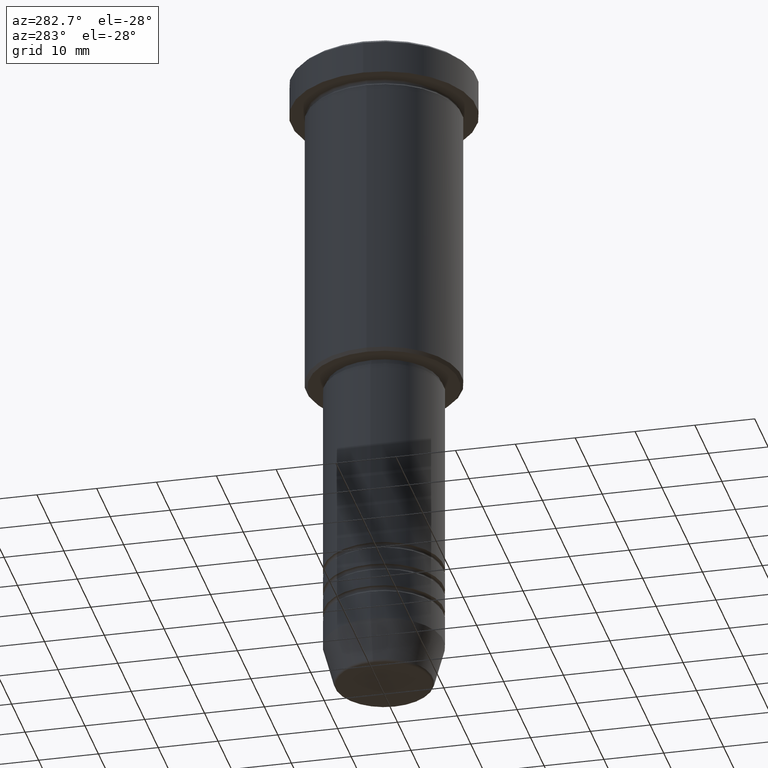
[diagram: clean part render]
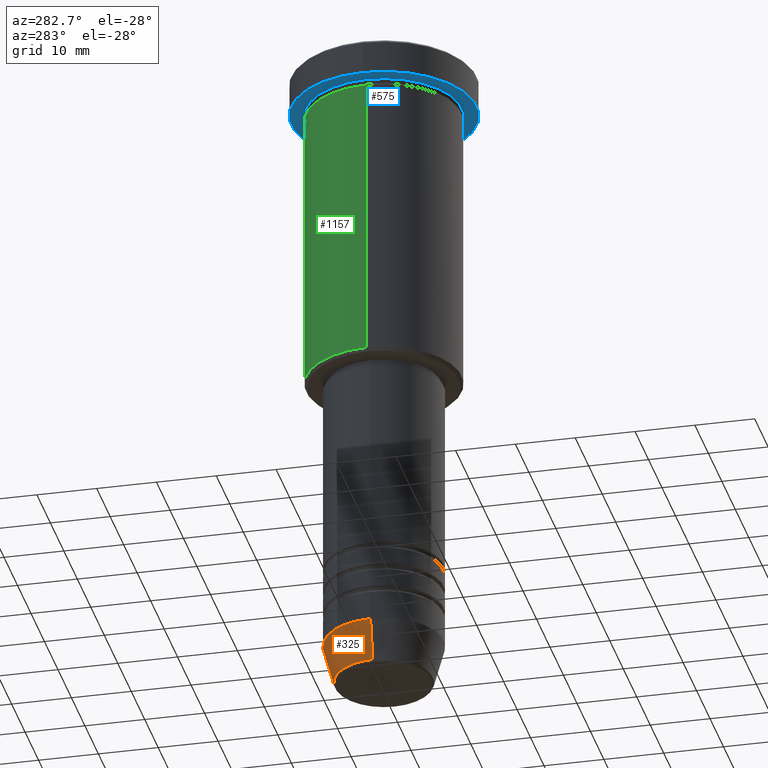
[diagram: same view with three faces highlighted in distinct colors, each labeled with its STEP entity id]
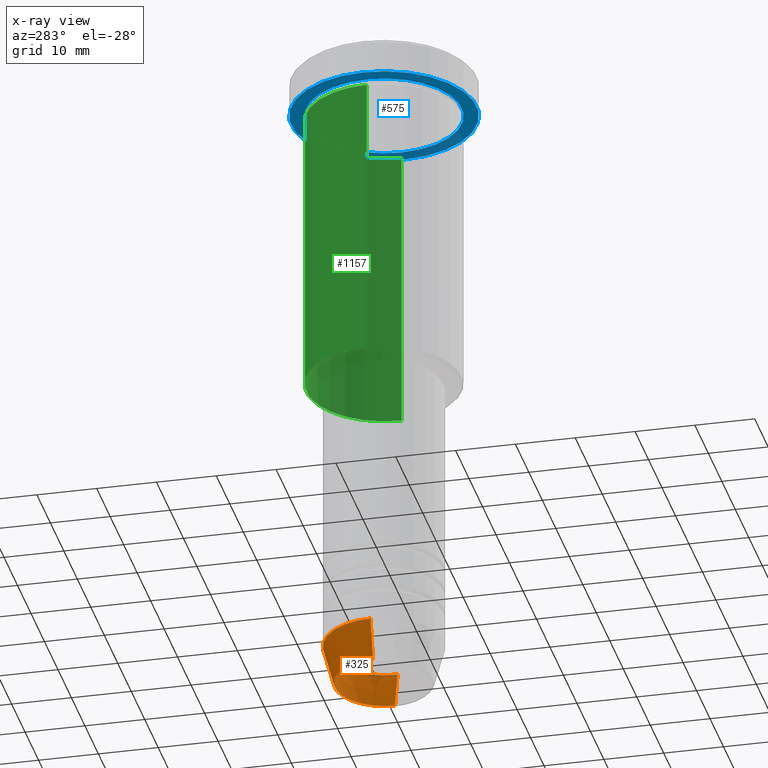
[diagram: x-ray of the same camera — body ghosted, the three highlighted faces saturated]
A machine part, auxiliary view with three faces highlighted in distinct colors.
The next image is the same camera in x-ray (body ghosted, the three faces saturated) — at least one of them is partly hidden behind the body in this view.
Their STEP definitions:

[orange] entity #325 — the highlighted conical surface has half-angle 15 deg.
#39 = DIRECTION ( 'NONE',  ( 1.000000000000000000, 0.000000000000000000, 0.000000000000000000 ) ) ;
#43 = DIRECTION ( 'NONE',  ( 0.2588190451025210725, 0.000000000000000000, 0.9659258262890680902 ) ) ;
#47 = CONICAL_SURFACE ( 'NONE', #1012, 10.00000000000000000, 0.2617993877991497964 ) ;
#49 = VERTEX_POINT ( 'NONE', #344 ) ;
#53 = CARTESIAN_POINT ( 'NONE',  ( -8.223655072137189492, 1.115877042642912054E-15, -110.6294095225512848 ) ) ;
#65 = ORIENTED_EDGE ( 'NONE', *, *, #370, .F. ) ;
#117 = DIRECTION ( 'NONE',  ( -0.000000000000000000, -0.000000000000000000, 1.000000000000000000 ) ) ;
#143 = CIRCLE ( 'NONE', #449, 8.223655072137189492 ) ;
#280 = EDGE_CURVE ( 'NONE', #589, #49, #505, .T. ) ;
#290 = VERTEX_POINT ( 'NONE', #53 ) ;
#305 = DIRECTION ( 'NONE',  ( -0.000000000000000000, -0.000000000000000000, 1.000000000000000000 ) ) ;
#308 = CARTESIAN_POINT ( 'NONE',  ( 10.00000000000000000, 0.000000000000000000, -104.0000000000000142 ) ) ;
#325 = ADVANCED_FACE ( 'NONE', ( #930 ), #47, .T. ) ;
#328 = DIRECTION ( 'NONE',  ( 1.000000000000000000, 0.000000000000000000, 0.000000000000000000 ) ) ;
#344 = CARTESIAN_POINT ( 'NONE',  ( -10.00000000000000000, 1.224646799147353256E-15, -104.0000000000000142 ) ) ;
#349 = EDGE_CURVE ( 'NONE', #290, #49, #392, .T. ) ;
#370 = EDGE_CURVE ( 'NONE', #965, #589, #1022, .T. ) ;
#392 = LINE ( 'NONE', #940, #744 ) ;
#397 = EDGE_CURVE ( 'NONE', #965, #290, #143, .T. ) ;
#409 = DIRECTION ( 'NONE',  ( 1.000000000000000000, 0.000000000000000000, 0.000000000000000000 ) ) ;
#449 = AXIS2_PLACEMENT_3D ( 'NONE', #486, #117, #409 ) ;
#486 = CARTESIAN_POINT ( 'NONE',  ( 0.000000000000000000, 0.000000000000000000, -110.6294095225512848 ) ) ;
#493 = CARTESIAN_POINT ( 'NONE',  ( 10.00000000000000000, 0.000000000000000000, -104.0000000000000142 ) ) ;
#505 = CIRCLE ( 'NONE', #617, 10.00000000000000000 ) ;
#589 = VERTEX_POINT ( 'NONE', #308 ) ;
#617 = AXIS2_PLACEMENT_3D ( 'NONE', #925, #305, #39 ) ;
#667 = CARTESIAN_POINT ( 'NONE',  ( 0.000000000000000000, 0.000000000000000000, -104.0000000000000142 ) ) ;
#728 = ORIENTED_EDGE ( 'NONE', *, *, #280, .F. ) ;
#744 = VECTOR ( 'NONE', #746, 1000.000000000000114 ) ;
#746 = DIRECTION ( 'NONE',  ( -0.2588190451025210725, 3.169619151431769255E-17, 0.9659258262890680902 ) ) ;
#755 = ORIENTED_EDGE ( 'NONE', *, *, #349, .T. ) ;
#847 = ORIENTED_EDGE ( 'NONE', *, *, #397, .T. ) ;
#925 = CARTESIAN_POINT ( 'NONE',  ( 0.000000000000000000, 0.000000000000000000, -104.0000000000000142 ) ) ;
#930 = FACE_OUTER_BOUND ( 'NONE', #972, .T. ) ;
#940 = CARTESIAN_POINT ( 'NONE',  ( -10.00000000000000000, 1.224646799147353256E-15, -104.0000000000000142 ) ) ;
#946 = DIRECTION ( 'NONE',  ( -0.000000000000000000, -0.000000000000000000, 1.000000000000000000 ) ) ;
#948 = CARTESIAN_POINT ( 'NONE',  ( 8.223655072137189492, 0.000000000000000000, -110.6294095225512848 ) ) ;
#965 = VERTEX_POINT ( 'NONE', #948 ) ;
#972 = EDGE_LOOP ( 'NONE', ( #847, #755, #728, #65 ) ) ;
#1012 = AXIS2_PLACEMENT_3D ( 'NONE', #667, #946, #328 ) ;
#1022 = LINE ( 'NONE', #493, #1111 ) ;
#1111 = VECTOR ( 'NONE', #43, 1000.000000000000114 ) ;

[blue] entity #575 — the highlighted planar face has unit normal (0, 0, -1).
#26 = CARTESIAN_POINT ( 'NONE',  ( 0.000000000000000000, 15.50000000000000000, -5.999999999999995559 ) ) ;
#30 = AXIS2_PLACEMENT_3D ( 'NONE', #911, #558, #554 ) ;
#157 = EDGE_LOOP ( 'NONE', ( #876, #1006 ) ) ;
#167 = CIRCLE ( 'NONE', #584, 15.50000000000000000 ) ;
#199 = CIRCLE ( 'NONE', #30, 13.00000000000000000 ) ;
#271 = DIRECTION ( 'NONE',  ( 1.000000000000000000, 0.000000000000000000, 0.000000000000000000 ) ) ;
#317 = AXIS2_PLACEMENT_3D ( 'NONE', #26, #929, #937 ) ;
#338 = VERTEX_POINT ( 'NONE', #399 ) ;
#354 = VERTEX_POINT ( 'NONE', #851 ) ;
#360 = CIRCLE ( 'NONE', #785, 15.50000000000000000 ) ;
#395 = DIRECTION ( 'NONE',  ( 1.000000000000000000, 0.000000000000000000, 0.000000000000000000 ) ) ;
#399 = CARTESIAN_POINT ( 'NONE',  ( -15.50000000000000000, 1.898202538678397557E-15, -5.999999999999995559 ) ) ;
#418 = FACE_OUTER_BOUND ( 'NONE', #967, .T. ) ;
#476 = VERTEX_POINT ( 'NONE', #1058 ) ;
#484 = ORIENTED_EDGE ( 'NONE', *, *, #792, .F. ) ;
#522 = VERTEX_POINT ( 'NONE', #624 ) ;
#554 = DIRECTION ( 'NONE',  ( -1.000000000000000000, 0.000000000000000000, 0.000000000000000000 ) ) ;
#558 = DIRECTION ( 'NONE',  ( -0.000000000000000000, -0.000000000000000000, 1.000000000000000000 ) ) ;
#575 = ADVANCED_FACE ( 'NONE', ( #674, #418 ), #856, .T. ) ;
#584 = AXIS2_PLACEMENT_3D ( 'NONE', #927, #1004, #395 ) ;
#600 = DIRECTION ( 'NONE',  ( -0.000000000000000000, -0.000000000000000000, 1.000000000000000000 ) ) ;
#612 = DIRECTION ( 'NONE',  ( -1.000000000000000000, 0.000000000000000000, 0.000000000000000000 ) ) ;
#624 = CARTESIAN_POINT ( 'NONE',  ( 15.50000000000000000, 0.000000000000000000, -5.999999999999995559 ) ) ;
#636 = CIRCLE ( 'NONE', #1112, 13.00000000000000000 ) ;
#661 = ORIENTED_EDGE ( 'NONE', *, *, #737, .F. ) ;
#674 = FACE_BOUND ( 'NONE', #157, .T. ) ;
#721 = EDGE_CURVE ( 'NONE', #476, #354, #636, .T. ) ;
#737 = EDGE_CURVE ( 'NONE', #338, #522, #360, .T. ) ;
#773 = EDGE_CURVE ( 'NONE', #354, #476, #199, .T. ) ;
#785 = AXIS2_PLACEMENT_3D ( 'NONE', #968, #600, #271 ) ;
#792 = EDGE_CURVE ( 'NONE', #522, #338, #167, .T. ) ;
#851 = CARTESIAN_POINT ( 'NONE',  ( -13.00000000000000000, 0.000000000000000000, -5.999999999999994671 ) ) ;
#856 = PLANE ( 'NONE',  #317 ) ;
#876 = ORIENTED_EDGE ( 'NONE', *, *, #773, .T. ) ;
#878 = DIRECTION ( 'NONE',  ( -0.000000000000000000, -0.000000000000000000, 1.000000000000000000 ) ) ;
#907 = CARTESIAN_POINT ( 'NONE',  ( 0.000000000000000000, 0.000000000000000000, -5.999999999999995559 ) ) ;
#911 = CARTESIAN_POINT ( 'NONE',  ( 0.000000000000000000, 0.000000000000000000, -5.999999999999995559 ) ) ;
#927 = CARTESIAN_POINT ( 'NONE',  ( 0.000000000000000000, 0.000000000000000000, -5.999999999999995559 ) ) ;
#929 = DIRECTION ( 'NONE',  ( 0.000000000000000000, 0.000000000000000000, -1.000000000000000000 ) ) ;
#937 = DIRECTION ( 'NONE',  ( -1.000000000000000000, 0.000000000000000000, -0.000000000000000000 ) ) ;
#967 = EDGE_LOOP ( 'NONE', ( #484, #661 ) ) ;
#968 = CARTESIAN_POINT ( 'NONE',  ( 0.000000000000000000, 0.000000000000000000, -5.999999999999995559 ) ) ;
#1004 = DIRECTION ( 'NONE',  ( -0.000000000000000000, -0.000000000000000000, 1.000000000000000000 ) ) ;
#1006 = ORIENTED_EDGE ( 'NONE', *, *, #721, .T. ) ;
#1058 = CARTESIAN_POINT ( 'NONE',  ( 13.00000000000000000, 1.592040838891559095E-15, -5.999999999999994671 ) ) ;
#1112 = AXIS2_PLACEMENT_3D ( 'NONE', #907, #878, #612 ) ;

[green] entity #1157 — the highlighted cylindrical surface (partial cylindrical patch) has radius 13 mm, axis along (-0, -0, 1).
#1 = EDGE_CURVE ( 'NONE', #759, #1148, #267, .T. ) ;
#88 = DIRECTION ( 'NONE',  ( -0.000000000000000000, -0.000000000000000000, 1.000000000000000000 ) ) ;
#105 = ORIENTED_EDGE ( 'NONE', *, *, #706, .T. ) ;
#154 = DIRECTION ( 'NONE',  ( -0.000000000000000000, -0.000000000000000000, 1.000000000000000000 ) ) ;
#182 = AXIS2_PLACEMENT_3D ( 'NONE', #524, #715, #1070 ) ;
#210 = ORIENTED_EDGE ( 'NONE', *, *, #1, .F. ) ;
#266 = AXIS2_PLACEMENT_3D ( 'NONE', #1068, #88, #890 ) ;
#267 = LINE ( 'NONE', #893, #448 ) ;
#309 = CARTESIAN_POINT ( 'NONE',  ( -13.00000000000000178, 1.592040838891559293E-15, -55.50000000000000000 ) ) ;
#312 = EDGE_LOOP ( 'NONE', ( #1048, #105, #1141, #210 ) ) ;
#373 = DIRECTION ( 'NONE',  ( -0.000000000000000000, -0.000000000000000000, 1.000000000000000000 ) ) ;
#376 = CIRCLE ( 'NONE', #182, 13.00000000000000178 ) ;
#425 = VERTEX_POINT ( 'NONE', #309 ) ;
#446 = VERTEX_POINT ( 'NONE', #533 ) ;
#448 = VECTOR ( 'NONE', #154, 1000.000000000000000 ) ;
#504 = EDGE_CURVE ( 'NONE', #1148, #446, #376, .T. ) ;
#523 = CARTESIAN_POINT ( 'NONE',  ( -13.00000000000000178, 1.592040838891559293E-15, 0.000000000000000000 ) ) ;
#524 = CARTESIAN_POINT ( 'NONE',  ( 0.000000000000000000, 0.000000000000000000, -6.999999999999995559 ) ) ;
#533 = CARTESIAN_POINT ( 'NONE',  ( -13.00000000000000178, 1.592040838891559293E-15, -6.999999999999995559 ) ) ;
#535 = FACE_OUTER_BOUND ( 'NONE', #312, .T. ) ;
#570 = CARTESIAN_POINT ( 'NONE',  ( 13.00000000000000178, 0.000000000000000000, -55.50000000000000000 ) ) ;
#618 = CYLINDRICAL_SURFACE ( 'NONE', #266, 13.00000000000000178 ) ;
#650 = VECTOR ( 'NONE', #373, 1000.000000000000000 ) ;
#683 = DIRECTION ( 'NONE',  ( -1.000000000000000000, 0.000000000000000000, 0.000000000000000000 ) ) ;
#685 = LINE ( 'NONE', #523, #650 ) ;
#691 = CARTESIAN_POINT ( 'NONE',  ( 0.000000000000000000, 0.000000000000000000, -55.50000000000000000 ) ) ;
#706 = EDGE_CURVE ( 'NONE', #425, #446, #685, .T. ) ;
#715 = DIRECTION ( 'NONE',  ( -0.000000000000000000, -0.000000000000000000, 1.000000000000000000 ) ) ;
#727 = CIRCLE ( 'NONE', #883, 13.00000000000000178 ) ;
#759 = VERTEX_POINT ( 'NONE', #570 ) ;
#883 = AXIS2_PLACEMENT_3D ( 'NONE', #691, #1131, #683 ) ;
#890 = DIRECTION ( 'NONE',  ( 1.000000000000000000, 0.000000000000000000, 0.000000000000000000 ) ) ;
#893 = CARTESIAN_POINT ( 'NONE',  ( 13.00000000000000178, 0.000000000000000000, 0.000000000000000000 ) ) ;
#906 = CARTESIAN_POINT ( 'NONE',  ( 13.00000000000000178, 0.000000000000000000, -6.999999999999995559 ) ) ;
#943 = EDGE_CURVE ( 'NONE', #759, #425, #727, .T. ) ;
#1048 = ORIENTED_EDGE ( 'NONE', *, *, #943, .T. ) ;
#1068 = CARTESIAN_POINT ( 'NONE',  ( 0.000000000000000000, 0.000000000000000000, 0.000000000000000000 ) ) ;
#1070 = DIRECTION ( 'NONE',  ( 1.000000000000000000, 0.000000000000000000, 0.000000000000000000 ) ) ;
#1131 = DIRECTION ( 'NONE',  ( -0.000000000000000000, -0.000000000000000000, 1.000000000000000000 ) ) ;
#1141 = ORIENTED_EDGE ( 'NONE', *, *, #504, .F. ) ;
#1148 = VERTEX_POINT ( 'NONE', #906 ) ;
#1157 = ADVANCED_FACE ( 'NONE', ( #535 ), #618, .T. ) ;